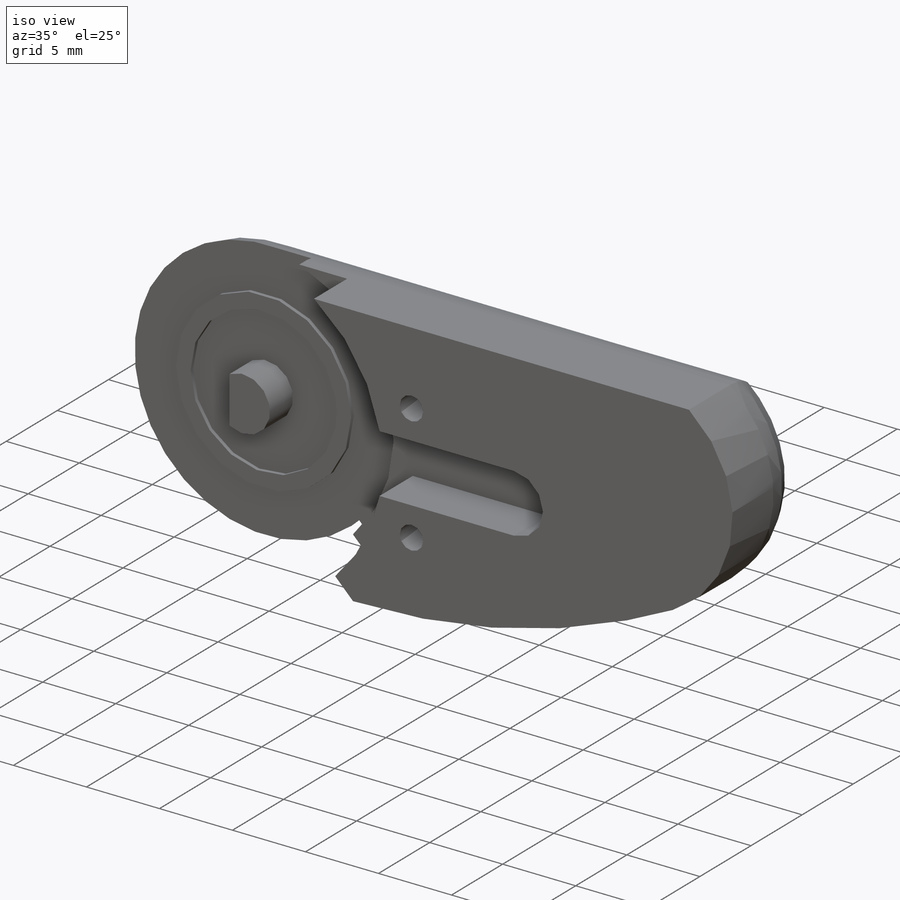
[diagram: iso view]
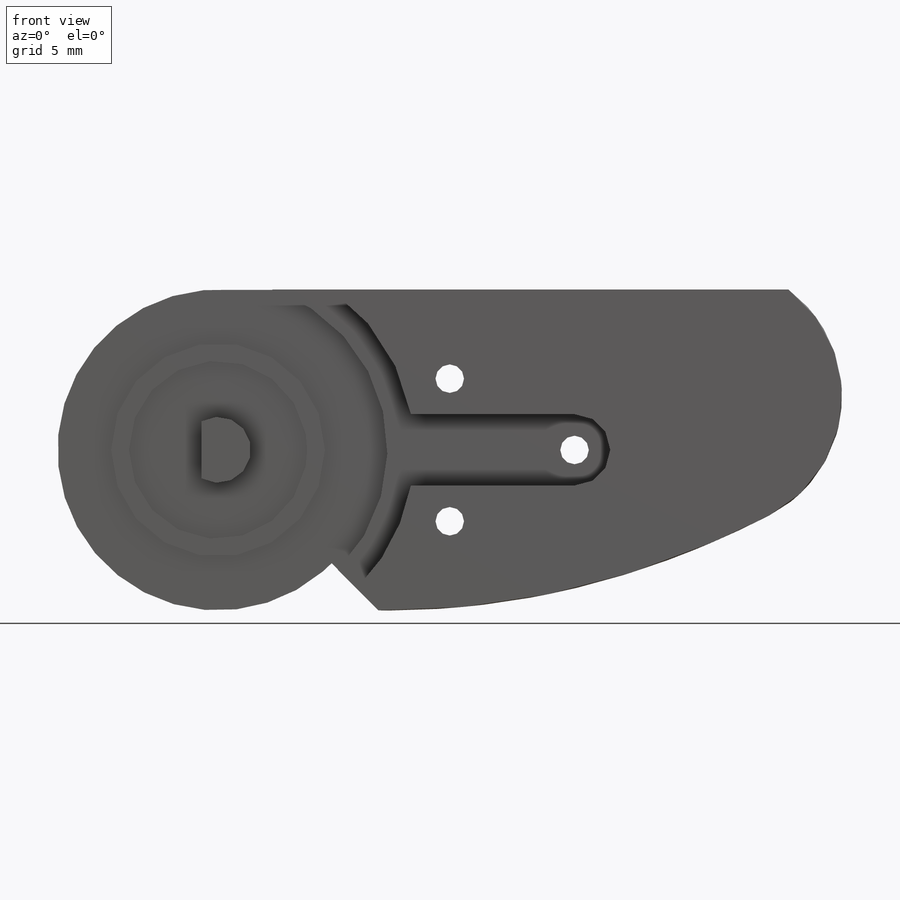
[diagram: front view]
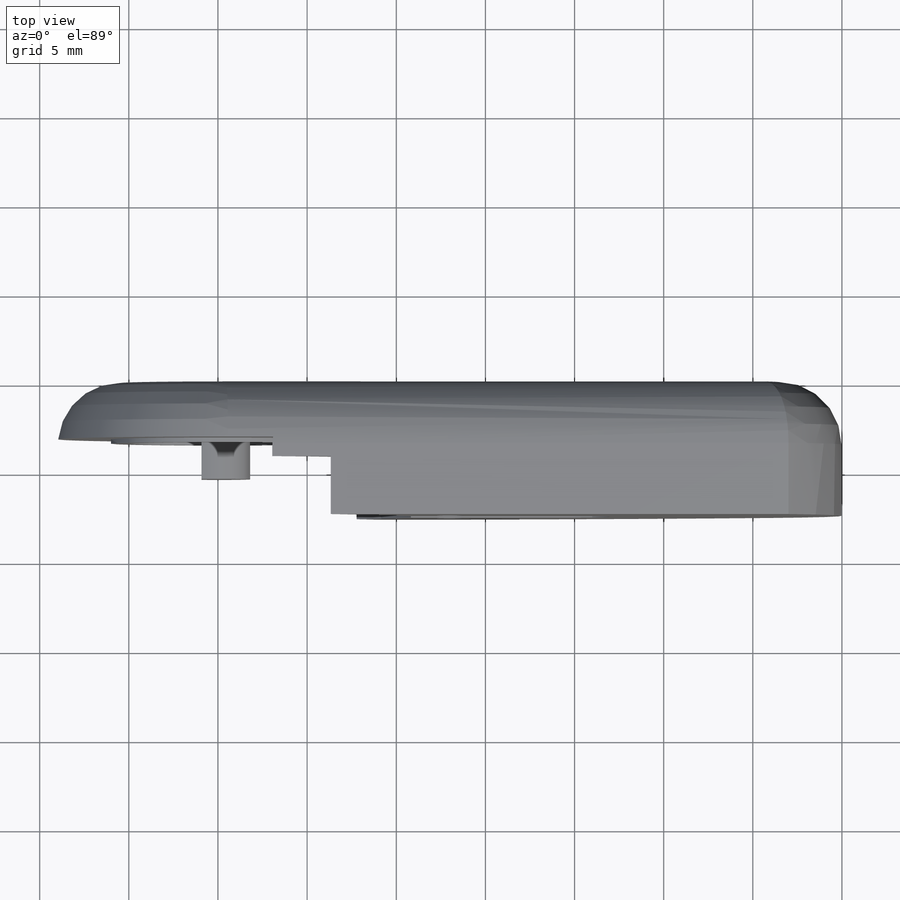
[diagram: top view]
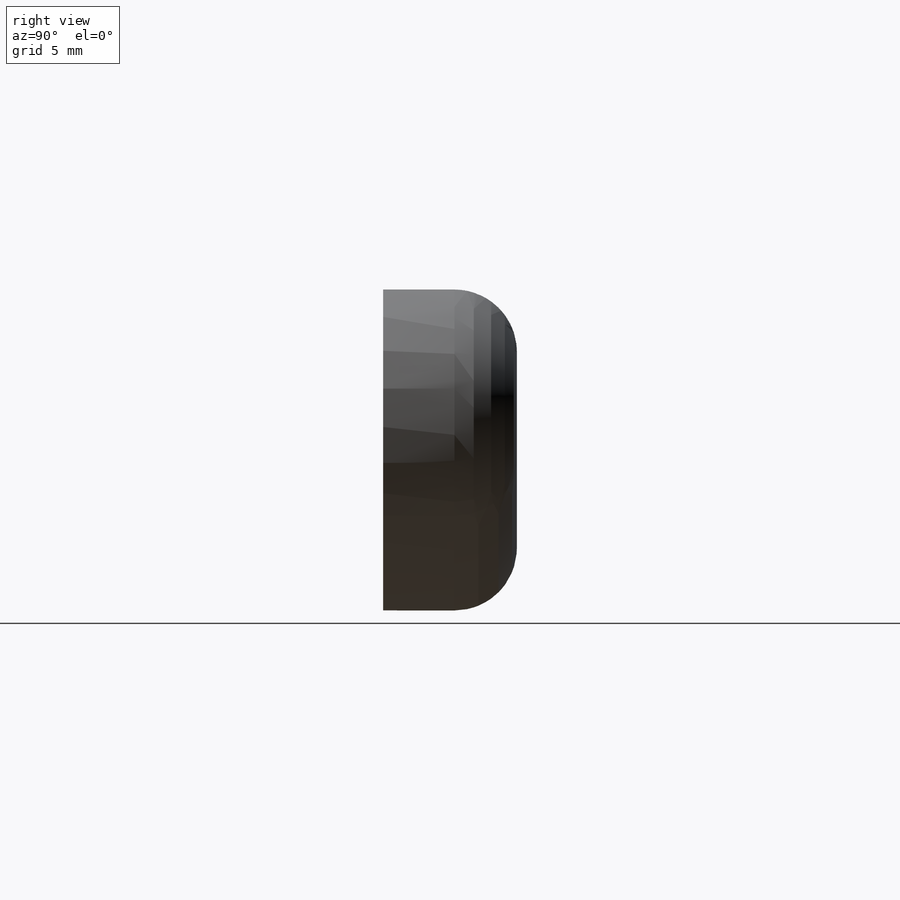
[diagram: right view]
SOLIDWORKS PART (.sldprt)
format: sldprt  version: not decoded by parser v0  size: 293,888 bytes
history: native  units: mm
features: sketch x7, cut_extrude x4, extrude x3, material x1, fillet x1 (+14 scaffold rows collapsed; 1 parser-record rows omitted)
feature tree (31):
  scaffold x14  (default folders/planes/origin — collapsed)
  material  "Material <not specified>"
  sketch  "Sketch1"  dims[D1=~12.727922mm]
  extrude  "Boss-Extrude1"  Depth=7.5mm
  sketch  "Sketch2"  dims[D1=19.0mm]
  cut_extrude  "Joint Hole"  Depth=4.35mm
  sketch  "Sketch3"  dims[D1=10.0mm]
  extrude  "Friction"  Depth=0.25mm
  sketch  "Sketch7"  dims[D1=~6.496329mm]
  cut_extrude  "Flex-Extend Canal"  Depth=3.25mm
  sketch  "Sketch8"  dims[D1=~0.589139mm]
  extrude  "Pot Insert"  Depth=2.25mm
  fillet  "Fillet5"  Radius=3.5mm
  parser-record x1  (decoder bookkeeping rows leaked as tree rows — omitted from the tree; the rows remain in map.json)
  sketch  "Sketch6"  dims[D1=20.0mm]
  cut_extrude  "Screw Holes"  [1 undecoded]
  sketch  "Sketch9"  dims[D1=2.5mm]
  cut_extrude  "Screw Heads"  Depth=2mm
decode coverage: 14 of 15 modeling features carry decoded parameters
note: ~ marks probable driven/reference dimensions
note: 1 parameter value undecoded
note: suppression state not decoded; provenance and decode notes live in map.json
